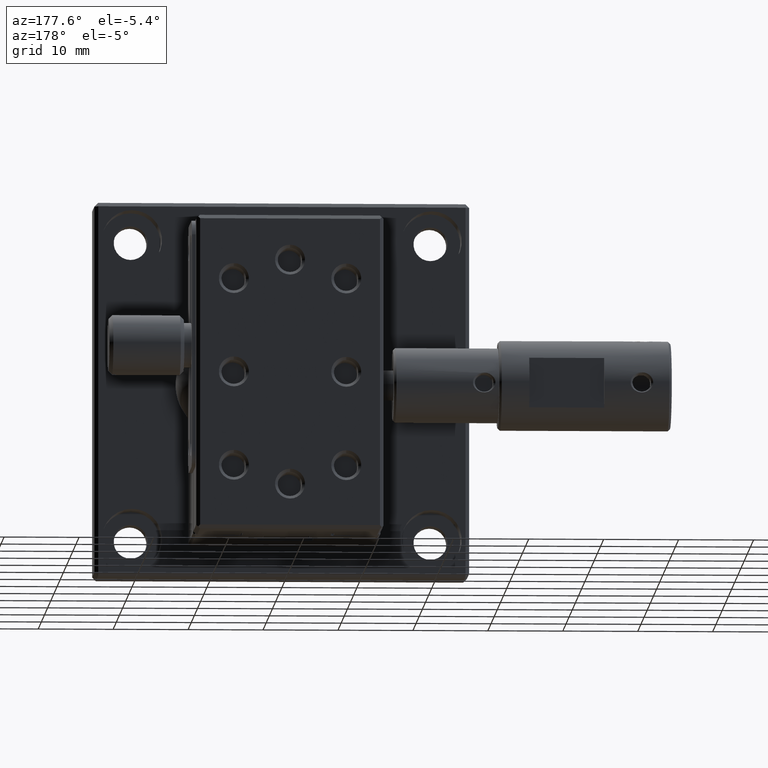
[diagram: clean part render]
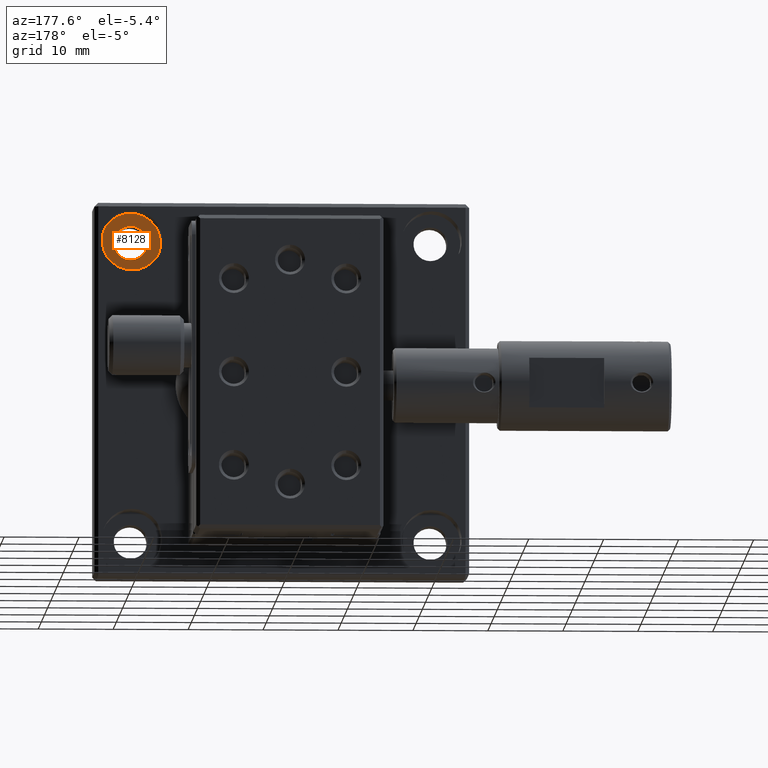
[diagram: same view with one face highlighted and labeled with its STEP entity id]
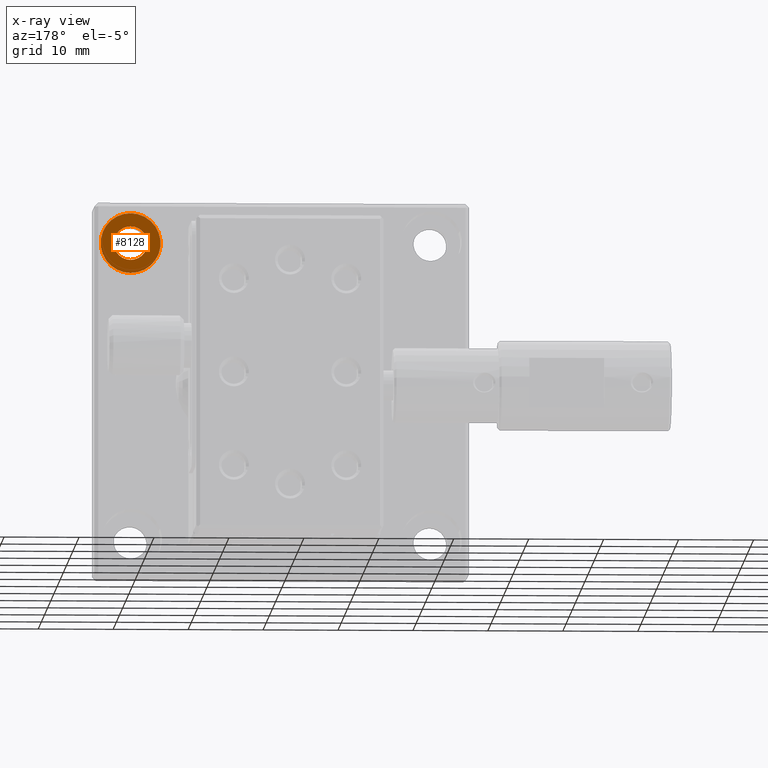
[diagram: x-ray of the same camera — body ghosted, the highlighted face saturated]
A machine part, auxiliary view. The second image highlights one B-rep face of the part: STEP entity #8128.
The next image is the same camera in x-ray: the body ghosted, the highlighted face saturated — about 0% of this face is hidden behind the body in this view.
In plain terms, the highlighted planar face has unit normal (0, 1, 0).
Its self-contained STEP definition (entity closure, byte-faithful):
#28 = DIRECTION ( 'NONE',  ( 0.000000000000000000, 1.000000000000000000, 0.000000000000000000 ) ) ;
#113 = DIRECTION ( 'NONE',  ( 0.000000000000000000, -0.000000000000000000, 1.000000000000000000 ) ) ;
#649 = CARTESIAN_POINT ( 'NONE',  ( 20.00000000000000000, -4.500000000000000888, 20.00000000000000000 ) ) ;
#908 = EDGE_LOOP ( 'NONE', ( #7846 ) ) ;
#1217 = EDGE_CURVE ( 'NONE', #1875, #1875, #1335, .T. ) ;
#1335 = CIRCLE ( 'NONE', #5641, 2.249999999999998668 ) ;
#1416 = DIRECTION ( 'NONE',  ( 0.000000000000000000, 0.000000000000000000, -1.000000000000000000 ) ) ;
#1875 = VERTEX_POINT ( 'NONE', #3101 ) ;
#2054 = CARTESIAN_POINT ( 'NONE',  ( 20.00000000000000000, -4.500000000000000888, 20.00000000000000000 ) ) ;
#2494 = DIRECTION ( 'NONE',  ( 0.000000000000000000, -1.000000000000000000, 0.000000000000000000 ) ) ;
#3101 = CARTESIAN_POINT ( 'NONE',  ( 20.00000000000000000, -4.500000000000000888, 17.75000000000000355 ) ) ;
#4112 = CARTESIAN_POINT ( 'NONE',  ( 20.00000000000000000, -4.500000000000000888, 24.00000000000000000 ) ) ;
#4554 = DIRECTION ( 'NONE',  ( 0.000000000000000000, 0.000000000000000000, 1.000000000000000000 ) ) ;
#4622 = VERTEX_POINT ( 'NONE', #4112 ) ;
#5641 = AXIS2_PLACEMENT_3D ( 'NONE', #2054, #2494, #1416 ) ;
#5746 = AXIS2_PLACEMENT_3D ( 'NONE', #649, #28, #4554 ) ;
#5999 = DIRECTION ( 'NONE',  ( 0.000000000000000000, 1.000000000000000000, 0.000000000000000000 ) ) ;
#6311 = EDGE_LOOP ( 'NONE', ( #6938 ) ) ;
#6470 = PLANE ( 'NONE',  #7125 ) ;
#6906 = EDGE_CURVE ( 'NONE', #4622, #4622, #7915, .T. ) ;
#6938 = ORIENTED_EDGE ( 'NONE', *, *, #1217, .T. ) ;
#7125 = AXIS2_PLACEMENT_3D ( 'NONE', #7187, #5999, #113 ) ;
#7187 = CARTESIAN_POINT ( 'NONE',  ( 20.00000000000000000, -4.500000000000000888, 20.00000000000000000 ) ) ;
#7784 = FACE_BOUND ( 'NONE', #6311, .T. ) ;
#7828 = FACE_OUTER_BOUND ( 'NONE', #908, .T. ) ;
#7846 = ORIENTED_EDGE ( 'NONE', *, *, #6906, .T. ) ;
#7915 = CIRCLE ( 'NONE', #5746, 4.000000000000000000 ) ;
#8128 = ADVANCED_FACE ( 'NONE', ( #7828, #7784 ), #6470, .T. ) ;